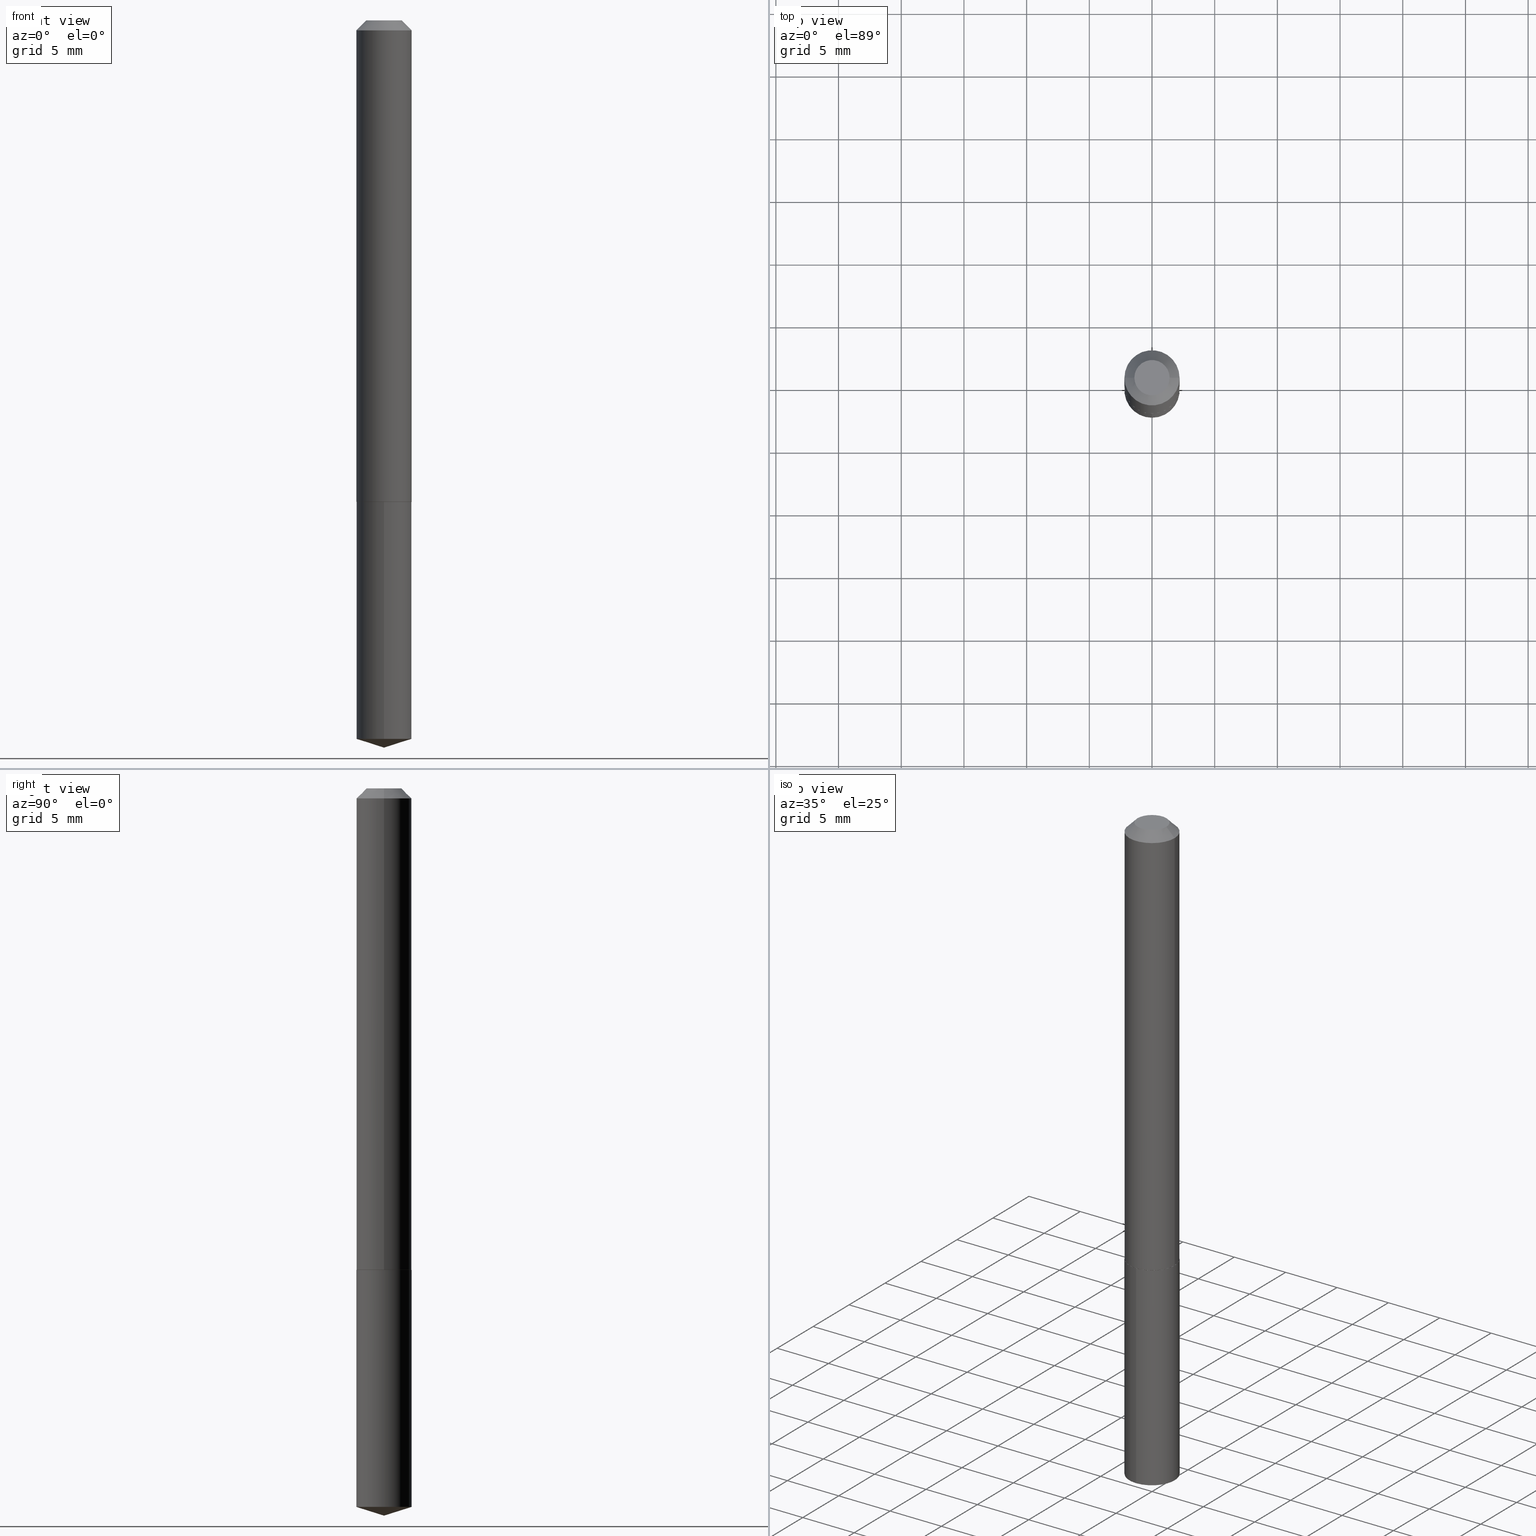
[diagram: canonical four-view strip — front | top / right | iso, engineering-drawing reading convention]
A machine part, canonical four-view strip (front | top / right | iso — engineering-drawing reading convention). The complete STEP part file that produces these views, byte-faithful:
ISO-10303-21;
HEADER;
FILE_DESCRIPTION (( 'STEP AP203' ),
    '1' );
FILE_NAME ('68692.STEP',
    '2024-04-23T13:39:04',
    ( '' ),
    ( '' ),
    'SwSTEP 2.0',
    'SolidWorks 2023',
    '' );
FILE_SCHEMA (( 'CONFIG_CONTROL_DESIGN' ));
ENDSEC;

DATA;
#1 = EDGE_CURVE ( 'NONE', #11, #234, #182, .T. ) ;
#2 = DIRECTION ( 'NONE',  ( -2.445422025612564352E-29, 3.491548331285653960E-15, 1.000000000000000000 ) ) ;
#3 = EDGE_CURVE ( 'NONE', #207, #19, #53, .T. ) ;
#4 = PLANE ( 'NONE',  #230 ) ;
#5 = CC_DESIGN_PERSON_AND_ORGANIZATION_ASSIGNMENT ( #176, #242, ( #196 ) ) ;
#6 = DIRECTION ( 'NONE',  ( -2.445468806185136597E-29, 3.491481338843145583E-15, 1.000000000000000000 ) ) ;
#7 = AXIS2_PLACEMENT_3D ( 'NONE', #246, #218, #387 ) ;
#8 = VECTOR ( 'NONE', #279, 39.37007874015748143 ) ;
#9 = ORGANIZATION ( 'UNSPECIFIED', 'UNSPECIFIED', '' ) ;
#10 = CYLINDRICAL_SURFACE ( 'NONE', #248, 0.08660000000000007969 ) ;
#11 = VERTEX_POINT ( 'NONE', #28 ) ;
#12 =( LENGTH_UNIT ( ) NAMED_UNIT ( * ) SI_UNIT ( $, .METRE. ) );
#13 = ORIENTED_EDGE ( 'NONE', *, *, #274, .F. ) ;
#14 =( NAMED_UNIT ( * ) PLANE_ANGLE_UNIT ( ) SI_UNIT ( $, .RADIAN. ) );
#15 = DIRECTION ( 'NONE',  ( -2.445422025612564352E-29, 3.491548331285653960E-15, 1.000000000000000000 ) ) ;
#16 = VERTEX_POINT ( 'NONE', #270 ) ;
#17 = EDGE_CURVE ( 'NONE', #11, #16, #103, .T. ) ;
#18 = COORDINATED_UNIVERSAL_TIME_OFFSET ( 5, 0, .BEHIND. ) ;
#19 = VERTEX_POINT ( 'NONE', #29 ) ;
#20 = DATE_AND_TIME ( #237, #202 ) ;
#21 = CIRCLE ( 'NONE', #38, 0.08660000000000017684 ) ;
#22 = LOCAL_TIME ( 9, 39, 4.000000000000000000, #170 ) ;
#23 = ORIENTED_EDGE ( 'NONE', *, *, #189, .F. ) ;
#24 = CC_DESIGN_DATE_AND_TIME_ASSIGNMENT ( #291, #51, ( #43 ) ) ;
#25 = COORDINATED_UNIVERSAL_TIME_OFFSET ( 5, 0, .BEHIND. ) ;
#26 = LINE ( 'NONE', #145, #158 ) ;
#27 = MECHANICAL_CONTEXT ( 'NONE', #154, 'mechanical' ) ;
#28 = CARTESIAN_POINT ( 'NONE',  ( 5.584121195486290452E-29, -7.972950614490791274E-15, -2.283500000000000085 ) ) ;
#29 = CARTESIAN_POINT ( 'NONE',  ( 0.08660000000000017684, -5.881400315281277448E-15, -1.511300000000000088 ) ) ;
#30 = VECTOR ( 'NONE', #268, 39.37007874015748854 ) ;
#31 = DIRECTION ( 'NONE',  ( -2.445468806185136597E-29, 3.491481338843145583E-15, 1.000000000000000000 ) ) ;
#32 = FACE_OUTER_BOUND ( 'NONE', #197, .T. ) ;
#33 = CARTESIAN_POINT ( 'NONE',  ( 7.642090019328603538E-31, -1.091087918388490390E-16, -0.03125000000000021511 ) ) ;
#34 = EDGE_CURVE ( 'NONE', #164, #341, #26, .T. ) ;
#35 = LINE ( 'NONE', #122, #356 ) ;
#36 = DIRECTION ( 'NONE',  ( -2.445468806185136597E-29, 3.491481338843145583E-15, 1.000000000000000000 ) ) ;
#37 = CARTESIAN_POINT ( 'NONE',  ( -9.069226578292615605E-28, 1.294896833924654436E-13, 37.08657874015747780 ) ) ;
#38 = AXIS2_PLACEMENT_3D ( 'NONE', #89, #36, #330 ) ;
#39 = CARTESIAN_POINT ( 'NONE',  ( -0.08660000000000017684, -4.661345738225397323E-15, -1.511300000000000088 ) ) ;
#40 = ORIENTED_EDGE ( 'NONE', *, *, #299, .T. ) ;
#41 = PLANE ( 'NONE',  #135 ) ;
#42 = ORIENTED_EDGE ( 'NONE', *, *, #114, .F. ) ;
#43 = PRODUCT_DEFINITION ( 'UNKNOWN', '', #196, #163 ) ;
#44 = AXIS2_PLACEMENT_3D ( 'NONE', #307, #31, #360 ) ;
#45 = FACE_OUTER_BOUND ( 'NONE', #66, .T. ) ;
#46 = ORIENTED_EDGE ( 'NONE', *, *, #72, .T. ) ;
#47 = PERSON_AND_ORGANIZATION_ROLE ( 'classification_officer' ) ;
#48 = DIRECTION ( 'NONE',  ( -6.982962677686265922E-15, -1.000000000000000000, 3.154558884138872662E-15 ) ) ;
#49 = PERSON_AND_ORGANIZATION ( #332, #9 ) ;
#50 = ORIENTED_EDGE ( 'NONE', *, *, #3, .F. ) ;
#51 = DATE_TIME_ROLE ( 'creation_date' ) ;
#52 = VECTOR ( 'NONE', #70, 39.37007874015748143 ) ;
#53 = LINE ( 'NONE', #300, #148 ) ;
#54 = ORIENTED_EDGE ( 'NONE', *, *, #99, .T. ) ;
#55 = ORIENTED_EDGE ( 'NONE', *, *, #302, .F. ) ;
#56 = PRODUCT_RELATED_PRODUCT_CATEGORY ( 'detail', '', ( #130 ) ) ;
#57 = DIRECTION ( 'NONE',  ( -2.445468806185136597E-29, 3.491481338843145583E-15, 1.000000000000000000 ) ) ;
#58 = CIRCLE ( 'NONE', #92, 0.08610000000000020415 ) ;
#59 = DIRECTION ( 'NONE',  ( -2.445468806185136877E-29, 3.491481338843145188E-15, 1.000000000000000000 ) ) ;
#60 = CARTESIAN_POINT ( 'NONE',  ( 7.642090019328603538E-31, -1.091087918388490390E-16, -0.03125000000000021511 ) ) ;
#61 = ADVANCED_FACE ( 'NONE', ( #80 ), #385, .T. ) ;
#62 = CARTESIAN_POINT ( 'NONE',  ( 7.642090019328603538E-31, -1.091087918388490390E-16, -0.03125000000000021511 ) ) ;
#63 = CARTESIAN_POINT ( 'NONE',  ( 3.697059741190689517E-29, -5.278421488063067239E-15, -1.511800000000000033 ) ) ;
#64 = LINE ( 'NONE', #193, #52 ) ;
#65 = CC_DESIGN_PERSON_AND_ORGANIZATION_ASSIGNMENT ( #269, #208, ( #196 ) ) ;
#66 = EDGE_LOOP ( 'NONE', ( #79, #102, #107, #349 ) ) ;
#67 = AXIS2_PLACEMENT_3D ( 'NONE', #37, #15, #256 ) ;
#68 = CC_DESIGN_APPROVAL ( #286, ( #43 ) ) ;
#69 = LENGTH_MEASURE_WITH_UNIT ( LENGTH_MEASURE( 0.02539999999999999897 ), #12 );
#70 = DIRECTION ( 'NONE',  ( -0.7071067811867889352, 7.493145998871226640E-15, 0.7071067811863060992 ) ) ;
#71 = ORIENTED_EDGE ( 'NONE', *, *, #17, .F. ) ;
#72 = EDGE_CURVE ( 'NONE', #161, #296, #183, .T. ) ;
#73 = EDGE_CURVE ( 'NONE', #16, #234, #201, .T. ) ;
#74 = AXIS2_PLACEMENT_3D ( 'NONE', #60, #213, #116 ) ;
#75 = DIRECTION ( 'NONE',  ( 0.000000000000000000, 0.000000000000000000, 1.000000000000000000 ) ) ;
#76 = DIRECTION ( 'NONE',  ( -6.659769872151632089E-15, -0.9537169507482267106, 0.3007057995042736187 ) ) ;
#77 = APPROVAL_DATE_TIME ( #263, #121 ) ;
#78 = EDGE_LOOP ( 'NONE', ( #13, #359, #322, #345 ) ) ;
#79 = ORIENTED_EDGE ( 'NONE', *, *, #235, .F. ) ;
#80 = FACE_OUTER_BOUND ( 'NONE', #78, .T. ) ;
#81 = SHAPE_DEFINITION_REPRESENTATION ( #93, #140 ) ;
#82 = ORIENTED_EDGE ( 'NONE', *, *, #225, .F. ) ;
#83 = ADVANCED_FACE ( 'NONE', ( #380 ), #386, .T. ) ;
#84 = CARTESIAN_POINT ( 'NONE',  ( 3.695837006787596715E-29, -5.276675747393645735E-15, -1.511300000000000088 ) ) ;
#85 = CARTESIAN_POINT ( 'NONE',  ( 3.697059741190689517E-29, -5.278421488063067239E-15, -1.511800000000000033 ) ) ;
#86 = AXIS2_PLACEMENT_3D ( 'NONE', #363, #276, #277 ) ;
#87 = DIRECTION ( 'NONE',  ( 1.000000000000000000, -6.982962677686265133E-15, 0.000000000000000000 ) ) ;
#88 = ADVANCED_FACE ( 'NONE', ( #309 ), #280, .T. ) ;
#89 = CARTESIAN_POINT ( 'NONE',  ( 3.695837006787596715E-29, -5.276675747393645735E-15, -1.511300000000000088 ) ) ;
#90 = CARTESIAN_POINT ( 'NONE',  ( 0.08610000000000020415, -5.879654574611855156E-15, -1.511799999999999811 ) ) ;
#91 = CLOSED_SHELL ( 'NONE', ( #252, #335, #245, #61, #125 ) ) ;
#92 = AXIS2_PLACEMENT_3D ( 'NONE', #283, #6, #166 ) ;
#93 = PRODUCT_DEFINITION_SHAPE ( 'NONE', 'NONE',  #43 ) ;
#94 = CARTESIAN_POINT ( 'NONE',  ( 7.046617267759642460E-29, -4.816644650414364040E-16, -1.511800000000000033 ) ) ;
#95 = DIRECTION ( 'NONE',  ( -1.000000000000000000, 6.982962677686265922E-15, -4.876176775795935793E-29 ) ) ;
#96 = CIRCLE ( 'NONE', #74, 0.08659999999999998255 ) ;
#97 = APPROVAL_PERSON_ORGANIZATION ( #180, #286, #293 ) ;
#98 = CARTESIAN_POINT ( 'NONE',  ( -2.919964657261559142E-48, 4.168935659749500181E-34, 1.194030629168655274E-19 ) ) ;
#99 = EDGE_CURVE ( 'NONE', #341, #211, #96, .T. ) ;
#100 = ORIENTED_EDGE ( 'NONE', *, *, #235, .T. ) ;
#101 = DIRECTION ( 'NONE',  ( -2.445468806185136597E-29, 3.491481338843145583E-15, 1.000000000000000000 ) ) ;
#102 = ORIENTED_EDGE ( 'NONE', *, *, #142, .T. ) ;
#103 = LINE ( 'NONE', #298, #30 ) ;
#104 = CONICAL_SURFACE ( 'NONE', #175, 0.08659999999999998255, 0.7853981633974449483 ) ;
#105 = DATE_AND_TIME ( #138, #379 ) ;
#106 = ORIENTED_EDGE ( 'NONE', *, *, #172, .F. ) ;
#107 = ORIENTED_EDGE ( 'NONE', *, *, #287, .T. ) ;
#108 = APPROVAL_STATUS ( 'not_yet_approved' ) ;
#109 = CARTESIAN_POINT ( 'NONE',  ( 3.697059741190689517E-29, -5.278421488063067239E-15, -1.511800000000000033 ) ) ;
#110 = PERSON_AND_ORGANIZATION ( #332, #9 ) ;
#111 = AXIS2_PLACEMENT_3D ( 'NONE', #390, #57, #278 ) ;
#112 = APPROVAL ( #265, 'UNSPECIFIED' ) ;
#113 = CARTESIAN_POINT ( 'NONE',  ( 3.697059741190689517E-29, -5.278421488063067239E-15, -1.511800000000000033 ) ) ;
#114 = EDGE_CURVE ( 'NONE', #234, #16, #144, .T. ) ;
#115 = DIRECTION ( 'NONE',  ( 6.982962677686265922E-15, 1.000000000000000000, -3.491548331285654355E-15 ) ) ;
#116 = DIRECTION ( 'NONE',  ( 1.000000000000000000, -6.982962677686267499E-15, 0.000000000000000000 ) ) ;
#117 = DIRECTION ( 'NONE',  ( -1.000000000000000000, 6.982962677686267499E-15, 0.000000000000000000 ) ) ;
#118 = LINE ( 'NONE', #388, #336 ) ;
#119 = CARTESIAN_POINT ( 'NONE',  ( 0.05534999999999998949, -5.414782413112588911E-16, 2.388061258369751875E-19 ) ) ;
#120 = FACE_OUTER_BOUND ( 'NONE', #266, .T. ) ;
#121 = APPROVAL ( #108, 'UNSPECIFIED' ) ;
#122 = CARTESIAN_POINT ( 'NONE',  ( 6.153300091682836148E-16, 0.08659999999999470899, -1.511800000000000255 ) ) ;
#123 = FACE_OUTER_BOUND ( 'NONE', #181, .T. ) ;
#124 = EDGE_LOOP ( 'NONE', ( #282, #324 ) ) ;
#125 = ADVANCED_FACE ( 'NONE', ( #361 ), #4, .F. ) ;
#126 = DIRECTION ( 'NONE',  ( 2.438088387897960049E-29, -3.491481338843145188E-15, -1.000000000000000000 ) ) ;
#127 =( GEOMETRIC_REPRESENTATION_CONTEXT ( 3 ) GLOBAL_UNCERTAINTY_ASSIGNED_CONTEXT ( ( #272 ) ) GLOBAL_UNIT_ASSIGNED_CONTEXT ( ( #199, #14, #259 ) ) REPRESENTATION_CONTEXT ( 'NONE', 'WORKASPACE' ) );
#128 = SECURITY_CLASSIFICATION ( '', '', #321 ) ;
#129 = DIRECTION ( 'NONE',  ( -2.445468806185136597E-29, 3.491481338843145583E-15, 1.000000000000000000 ) ) ;
#130 = PRODUCT ( '68692', '68692', '', ( #27 ) ) ;
#131 = APPROVAL_ROLE ( '' ) ;
#132 = APPROVAL_DATE_TIME ( #105, #112 ) ;
#133 = VERTEX_POINT ( 'NONE', #119 ) ;
#134 = EDGE_CURVE ( 'NONE', #159, #207, #378, .T. ) ;
#135 = AXIS2_PLACEMENT_3D ( 'NONE', #94, #376, #221 ) ;
#136 = PERSON_AND_ORGANIZATION ( #332, #9 ) ;
#137 = ORIENTED_EDGE ( 'NONE', *, *, #73, .F. ) ;
#138 = CALENDAR_DATE ( 2024, 23, 4 ) ;
#139 = ORIENTED_EDGE ( 'NONE', *, *, #189, .T. ) ;
#140 = ADVANCED_BREP_SHAPE_REPRESENTATION ( '68692', ( #233, #239, #249 ), #127 ) ;
#141 = APPROVAL_STATUS ( 'not_yet_approved' ) ;
#142 = EDGE_CURVE ( 'NONE', #373, #19, #255, .T. ) ;
#143 = ORIENTED_EDGE ( 'NONE', *, *, #367, .T. ) ;
#144 = CIRCLE ( 'NONE', #7, 0.08659999999999998255 ) ;
#145 = CARTESIAN_POINT ( 'NONE',  ( -0.08659999999999998255, 4.956157760487816265E-16, -0.03125000000000021511 ) ) ;
#146 = CARTESIAN_POINT ( 'NONE',  ( 6.153300091683017586E-16, 0.08659999999999469511, -1.511800000000000255 ) ) ;
#147 = CYLINDRICAL_SURFACE ( 'NONE', #231, 0.08659999999999998255 ) ;
#148 = VECTOR ( 'NONE', #177, 39.37007874015748143 ) ;
#149 = DIRECTION ( 'NONE',  ( -1.000000000000000000, 6.982962677686267499E-15, 0.000000000000000000 ) ) ;
#150 = CIRCLE ( 'NONE', #223, 0.05534999999999998949 ) ;
#151 = APPROVAL_PERSON_ORGANIZATION ( #136, #112, #381 ) ;
#152 = EDGE_CURVE ( 'NONE', #19, #373, #21, .T. ) ;
#153 = DIRECTION ( 'NONE',  ( 2.445468806185136597E-29, -3.491481338843145583E-15, -1.000000000000000000 ) ) ;
#154 = APPLICATION_CONTEXT ( 'configuration controlled 3d designs of mechanical parts and assemblies' ) ;
#155 = FACE_OUTER_BOUND ( 'NONE', #174, .T. ) ;
#156 = CC_DESIGN_PERSON_AND_ORGANIZATION_ASSIGNMENT ( #49, #47, ( #128 ) ) ;
#157 = DIRECTION ( 'NONE',  ( 0.7071067811865451302, -7.319954787623248157E-15, -0.7071067811865499042 ) ) ;
#158 = VECTOR ( 'NONE', #273, 39.37007874015748143 ) ;
#159 = VERTEX_POINT ( 'NONE', #305 ) ;
#160 = DIRECTION ( 'NONE',  ( 1.000000000000000000, -6.982962677686267499E-15, 4.876176775795935793E-29 ) ) ;
#161 = VERTEX_POINT ( 'NONE', #146 ) ;
#162 = CYLINDRICAL_SURFACE ( 'NONE', #318, 0.08660000000000007969 ) ;
#163 = DESIGN_CONTEXT ( 'detailed design', #165, 'design' ) ;
#164 = VERTEX_POINT ( 'NONE', #365 ) ;
#165 = APPLICATION_CONTEXT ( 'configuration controlled 3d designs of mechanical parts and assemblies' ) ;
#166 = DIRECTION ( 'NONE',  ( 1.000000000000000000, -6.982962677686268288E-15, 0.000000000000000000 ) ) ;
#167 = VECTOR ( 'NONE', #198, 39.37007874015748143 ) ;
#168 = CALENDAR_DATE ( 2024, 23, 4 ) ;
#169 = ORIENTED_EDGE ( 'NONE', *, *, #34, .T. ) ;
#170 = COORDINATED_UNIVERSAL_TIME_OFFSET ( 5, 0, .BEHIND. ) ;
#171 = CARTESIAN_POINT ( 'NONE',  ( 5.517419975338388882E-29, -7.877513044165762958E-15, -2.256195124883080272 ) ) ;
#172 = EDGE_CURVE ( 'NONE', #211, #341, #369, .T. ) ;
#173 = PERSON_AND_ORGANIZATION_ROLE ( 'design_owner' ) ;
#174 = EDGE_LOOP ( 'NONE', ( #238, #23, #169, #54 ) ) ;
#175 = AXIS2_PLACEMENT_3D ( 'NONE', #33, #153, #149 ) ;
#176 = PERSON_AND_ORGANIZATION ( #332, #9 ) ;
#177 = DIRECTION ( 'NONE',  ( 0.7071067811867889352, -2.468850131084785360E-15, 0.7071067811863060992 ) ) ;
#178 = ADVANCED_FACE ( 'NONE', ( #155 ), #362, .T. ) ;
#179 = CC_DESIGN_PERSON_AND_ORGANIZATION_ASSIGNMENT ( #110, #173, ( #130 ) ) ;
#180 = PERSON_AND_ORGANIZATION ( #332, #9 ) ;
#181 = EDGE_LOOP ( 'NONE', ( #314, #227, #42 ) ) ;
#182 = LINE ( 'NONE', #236, #346 ) ;
#183 = CIRCLE ( 'NONE', #368, 0.08659999999999998255 ) ;
#184 = DIRECTION ( 'NONE',  ( -6.982962677686265922E-15, -1.000000000000000000, 3.154558884138872662E-15 ) ) ;
#185 = FACE_OUTER_BOUND ( 'NONE', #209, .T. ) ;
#186 = DIRECTION ( 'NONE',  ( -2.445468806185136597E-29, 3.491481338843145583E-15, 1.000000000000000000 ) ) ;
#187 = DIRECTION ( 'NONE',  ( -6.982962677686267499E-15, -1.000000000000000000, 3.500519750498701671E-15 ) ) ;
#188 = LOCAL_TIME ( 9, 39, 4.000000000000000000, #384 ) ;
#189 = EDGE_CURVE ( 'NONE', #164, #133, #210, .T. ) ;
#190 = FACE_OUTER_BOUND ( 'NONE', #320, .T. ) ;
#191 = CARTESIAN_POINT ( 'NONE',  ( 0.08659999999999998255, -7.032279184458636221E-16, -0.03125000000000021511 ) ) ;
#192 = ORIENTED_EDGE ( 'NONE', *, *, #274, .T. ) ;
#193 = CARTESIAN_POINT ( 'NONE',  ( -0.08660000000000017684, -4.661345738225397323E-15, -1.511300000000000088 ) ) ;
#194 = AXIS2_PLACEMENT_3D ( 'NONE', #62, #216, #117 ) ;
#195 = ORIENTED_EDGE ( 'NONE', *, *, #225, .T. ) ;
#196 = PRODUCT_DEFINITION_FORMATION_WITH_SPECIFIED_SOURCE ( 'ANY', '', #130, .NOT_KNOWN. ) ;
#197 = EDGE_LOOP ( 'NONE', ( #222, #192, #82, #55 ) ) ;
#198 = DIRECTION ( 'NONE',  ( -2.445468806185136877E-29, 3.491481338843145188E-15, 1.000000000000000000 ) ) ;
#199 =( CONVERSION_BASED_UNIT ( 'INCH', #69 ) LENGTH_UNIT ( ) NAMED_UNIT ( #215 ) );
#200 = ORIENTED_EDGE ( 'NONE', *, *, #287, .F. ) ;
#201 = CIRCLE ( 'NONE', #342, 0.08659999999999998255 ) ;
#202 = LOCAL_TIME ( 9, 39, 4.000000000000000000, #358 ) ;
#203 = ADVANCED_FACE ( 'NONE', ( #190 ), #104, .T. ) ;
#204 = PERSON_AND_ORGANIZATION ( #332, #9 ) ;
#205 = DIRECTION ( 'NONE',  ( -2.445422025612564352E-29, 3.491548331285653960E-15, 1.000000000000000000 ) ) ;
#206 = PERSON_AND_ORGANIZATION ( #332, #9 ) ;
#207 = VERTEX_POINT ( 'NONE', #90 ) ;
#208 = PERSON_AND_ORGANIZATION_ROLE ( 'design_supplier' ) ;
#209 = EDGE_LOOP ( 'NONE', ( #71, #303, #137 ) ) ;
#210 = CIRCLE ( 'NONE', #311, 0.05534999999999998949 ) ;
#211 = VERTEX_POINT ( 'NONE', #333 ) ;
#212 = ORIENTED_EDGE ( 'NONE', *, *, #152, .T. ) ;
#213 = DIRECTION ( 'NONE',  ( -2.445468806185136597E-29, 3.491481338843145583E-15, 1.000000000000000000 ) ) ;
#214 = DIRECTION ( 'NONE',  ( -2.445468806185136597E-29, 3.491481338843145583E-15, 1.000000000000000000 ) ) ;
#215 = DIMENSIONAL_EXPONENTS ( 1.000000000000000000, 0.000000000000000000, 0.000000000000000000, 0.000000000000000000, 0.000000000000000000, 0.000000000000000000, 0.000000000000000000 ) ;
#216 = DIRECTION ( 'NONE',  ( 2.445468806185136597E-29, -3.491481338843145583E-15, -1.000000000000000000 ) ) ;
#217 = DIRECTION ( 'NONE',  ( 1.000000000000000000, -6.982962677686266711E-15, 4.876151470398592516E-29 ) ) ;
#218 = DIRECTION ( 'NONE',  ( -2.445422025612564352E-29, 3.491548331285653960E-15, 1.000000000000000000 ) ) ;
#219 = AXIS2_PLACEMENT_3D ( 'NONE', #84, #214, #87 ) ;
#220 = LINE ( 'NONE', #310, #8 ) ;
#221 = DIRECTION ( 'NONE',  ( 1.000000000000000000, -6.982962677686265922E-15, 4.876176775795935793E-29 ) ) ;
#222 = ORIENTED_EDGE ( 'NONE', *, *, #114, .T. ) ;
#223 = AXIS2_PLACEMENT_3D ( 'NONE', #254, #101, #226 ) ;
#224 = ORIENTED_EDGE ( 'NONE', *, *, #172, .T. ) ;
#225 = EDGE_CURVE ( 'NONE', #296, #161, #271, .T. ) ;
#226 = DIRECTION ( 'NONE',  ( 1.000000000000000000, -6.982962677686266711E-15, 4.876151470398592516E-29 ) ) ;
#227 = ORIENTED_EDGE ( 'NONE', *, *, #17, .T. ) ;
#228 = APPLICATION_PROTOCOL_DEFINITION ( 'international standard', 'config_control_design', 1994, #154 ) ;
#229 = DIRECTION ( 'NONE',  ( -2.445422025612564352E-29, 3.491548331285653960E-15, 1.000000000000000000 ) ) ;
#230 = AXIS2_PLACEMENT_3D ( 'NONE', #85, #337, #115 ) ;
#231 = AXIS2_PLACEMENT_3D ( 'NONE', #250, #334, #308 ) ;
#232 = CC_DESIGN_SECURITY_CLASSIFICATION ( #128, ( #196 ) ) ;
#233 = MANIFOLD_SOLID_BREP ( 'Body-Move/Copy2[1]', #91 ) ;
#234 = VERTEX_POINT ( 'NONE', #275 ) ;
#235 = EDGE_CURVE ( 'NONE', #373, #341, #118, .T. ) ;
#236 = CARTESIAN_POINT ( 'NONE',  ( 5.584121195486290452E-29, -7.972950614490792852E-15, -2.283500000000000085 ) ) ;
#237 = CALENDAR_DATE ( 2024, 23, 4 ) ;
#238 = ORIENTED_EDGE ( 'NONE', *, *, #299, .F. ) ;
#239 = MANIFOLD_SOLID_BREP ( 'Body-Move/Copy2[2]', #317 ) ;
#240 = CONICAL_SURFACE ( 'NONE', #67, 124.8659371009151613, 1.265363707695891904 ) ;
#241 = CC_DESIGN_APPROVAL ( #112, ( #128 ) ) ;
#242 = PERSON_AND_ORGANIZATION_ROLE ( 'creator' ) ;
#243 = ORIENTED_EDGE ( 'NONE', *, *, #34, .F. ) ;
#244 = CARTESIAN_POINT ( 'NONE',  ( 3.697059741190688956E-29, -5.278421488063066450E-15, -1.511799999999999811 ) ) ;
#245 = ADVANCED_FACE ( 'NONE', ( #185 ), #348, .T. ) ;
#246 = CARTESIAN_POINT ( 'NONE',  ( 5.517419975338388882E-29, -7.877513044165762958E-15, -2.256195124883080272 ) ) ;
#247 = AXIS2_PLACEMENT_3D ( 'NONE', #113, #229, #383 ) ;
#248 = AXIS2_PLACEMENT_3D ( 'NONE', #344, #372, #160 ) ;
#249 = AXIS2_PLACEMENT_3D ( 'NONE', #297, #75, #295 ) ;
#250 = CARTESIAN_POINT ( 'NONE',  ( 3.697059741190689517E-29, -5.278421488063067239E-15, -1.511800000000000033 ) ) ;
#251 = CARTESIAN_POINT ( 'NONE',  ( -9.069226578292615605E-28, 1.294896833924654436E-13, 37.08657874015747780 ) ) ;
#252 = ADVANCED_FACE ( 'NONE', ( #32 ), #147, .T. ) ;
#253 = DIRECTION ( 'NONE',  ( 1.000000000000000000, -6.982962677686268288E-15, 0.000000000000000000 ) ) ;
#254 = CARTESIAN_POINT ( 'NONE',  ( -5.839929314523118284E-48, 8.337871319499000362E-34, 2.388061258337310548E-19 ) ) ;
#255 = CIRCLE ( 'NONE', #44, 0.08660000000000017684 ) ;
#256 = DIRECTION ( 'NONE',  ( -6.982962677686267499E-15, -1.000000000000000000, 3.500519750498701671E-15 ) ) ;
#257 = CARTESIAN_POINT ( 'NONE',  ( -6.047245678875935520E-16, -0.08660000000000526998, -1.511799999999999811 ) ) ;
#258 = EDGE_LOOP ( 'NONE', ( #292, #351, #371, #382 ) ) ;
#259 =( NAMED_UNIT ( * ) SI_UNIT ( $, .STERADIAN. ) SOLID_ANGLE_UNIT ( ) );
#260 = AXIS2_PLACEMENT_3D ( 'NONE', #251, #306, #187 ) ;
#261 = APPROVAL_PERSON_ORGANIZATION ( #206, #121, #131 ) ;
#262 = CARTESIAN_POINT ( 'NONE',  ( 0.08660000000000007969, -6.047245678876313188E-16, 4.222769087839284057E-30 ) ) ;
#263 = DATE_AND_TIME ( #377, #22 ) ;
#264 = DIRECTION ( 'NONE',  ( -6.982962677686265922E-15, -1.000000000000000000, 3.154558884138872662E-15 ) ) ;
#265 = APPROVAL_STATUS ( 'not_yet_approved' ) ;
#266 = EDGE_LOOP ( 'NONE', ( #212, #100, #106, #200 ) ) ;
#267 = DATE_AND_TIME ( #168, #188 ) ;
#268 = DIRECTION ( 'NONE',  ( 6.776566513254257349E-15, 0.9537169507482289310, 0.3007057995042669574 ) ) ;
#269 = PERSON_AND_ORGANIZATION ( #332, #9 ) ;
#270 = CARTESIAN_POINT ( 'NONE',  ( 6.153300091683018572E-16, 0.08659999999999209996, -2.256195124883080716 ) ) ;
#271 = CIRCLE ( 'NONE', #304, 0.08659999999999998255 ) ;
#272 = UNCERTAINTY_MEASURE_WITH_UNIT (LENGTH_MEASURE( 1.000000000000000082E-05 ), #199, 'distance_accuracy_value', 'NONE');
#273 = DIRECTION ( 'NONE',  ( -0.7071067811865451302, 2.468850131082231817E-15, -0.7071067811865499042 ) ) ;
#274 = EDGE_CURVE ( 'NONE', #16, #161, #35, .T. ) ;
#275 = CARTESIAN_POINT ( 'NONE',  ( -6.047245678875755068E-16, -0.08660000000000787901, -2.256195124883080272 ) ) ;
#276 = DIRECTION ( 'NONE',  ( -2.445468806185136597E-29, 3.491481338843145583E-15, 1.000000000000000000 ) ) ;
#277 = DIRECTION ( 'NONE',  ( 1.000000000000000000, -6.982962677686265133E-15, 0.000000000000000000 ) ) ;
#278 = DIRECTION ( 'NONE',  ( 1.000000000000000000, -6.982962677686267499E-15, 0.000000000000000000 ) ) ;
#279 = DIRECTION ( 'NONE',  ( -2.445422025612564632E-29, 3.491548331285654355E-15, 1.000000000000000000 ) ) ;
#280 = CONICAL_SURFACE ( 'NONE', #219, 0.08660000000000017684, 0.7853981633977896726 ) ;
#281 = FACE_OUTER_BOUND ( 'NONE', #124, .T. ) ;
#282 = ORIENTED_EDGE ( 'NONE', *, *, #326, .F. ) ;
#283 = CARTESIAN_POINT ( 'NONE',  ( 3.697059741190688956E-29, -5.278421488063066450E-15, -1.511799999999999811 ) ) ;
#284 = FACE_OUTER_BOUND ( 'NONE', #316, .T. ) ;
#285 = ORIENTED_EDGE ( 'NONE', *, *, #354, .T. ) ;
#286 = APPROVAL ( #141, 'UNSPECIFIED' ) ;
#287 = EDGE_CURVE ( 'NONE', #19, #211, #288, .T. ) ;
#288 = LINE ( 'NONE', #262, #167 ) ;
#289 = AXIS2_PLACEMENT_3D ( 'NONE', #244, #186, #253 ) ;
#290 = ORIENTED_EDGE ( 'NONE', *, *, #354, .F. ) ;
#291 = DATE_AND_TIME ( #350, #313 ) ;
#292 = ORIENTED_EDGE ( 'NONE', *, *, #367, .F. ) ;
#293 = APPROVAL_ROLE ( '' ) ;
#294 = DIRECTION ( 'NONE',  ( -2.445422025612564352E-29, 3.491548331285653960E-15, 1.000000000000000000 ) ) ;
#295 = DIRECTION ( 'NONE',  ( 1.000000000000000000, 0.000000000000000000, 0.000000000000000000 ) ) ;
#296 = VERTEX_POINT ( 'NONE', #257 ) ;
#297 = CARTESIAN_POINT ( 'NONE',  ( 0.000000000000000000, 0.000000000000000000, 0.000000000000000000 ) ) ;
#298 = CARTESIAN_POINT ( 'NONE',  ( 5.584263881537691311E-29, -7.972748056141623317E-15, -2.283500000000000085 ) ) ;
#299 = EDGE_CURVE ( 'NONE', #133, #211, #312, .T. ) ;
#300 = CARTESIAN_POINT ( 'NONE',  ( 0.08660000000000017684, -5.881400315281277448E-15, -1.511300000000000088 ) ) ;
#301 = CC_DESIGN_PERSON_AND_ORGANIZATION_ASSIGNMENT ( #204, #319, ( #43 ) ) ;
#302 = EDGE_CURVE ( 'NONE', #234, #296, #220, .T. ) ;
#303 = ORIENTED_EDGE ( 'NONE', *, *, #1, .T. ) ;
#304 = AXIS2_PLACEMENT_3D ( 'NONE', #63, #2, #184 ) ;
#305 = CARTESIAN_POINT ( 'NONE',  ( -0.08610000000000020415, -4.663994965399507735E-15, -1.511799999999999811 ) ) ;
#306 = DIRECTION ( 'NONE',  ( -2.445422025612564352E-29, 3.491548331285653960E-15, 1.000000000000000000 ) ) ;
#307 = CARTESIAN_POINT ( 'NONE',  ( 3.695837006787596715E-29, -5.276675747393645735E-15, -1.511300000000000088 ) ) ;
#308 = DIRECTION ( 'NONE',  ( -6.982962677686265922E-15, -1.000000000000000000, 3.154558884138872662E-15 ) ) ;
#309 = FACE_OUTER_BOUND ( 'NONE', #327, .T. ) ;
#310 = CARTESIAN_POINT ( 'NONE',  ( -6.047245678875935520E-16, -0.08660000000000526998, -1.511799999999999811 ) ) ;
#311 = AXIS2_PLACEMENT_3D ( 'NONE', #364, #331, #217 ) ;
#312 = LINE ( 'NONE', #191, #325 ) ;
#313 = LOCAL_TIME ( 9, 39, 4.000000000000000000, #25 ) ;
#314 = ORIENTED_EDGE ( 'NONE', *, *, #1, .F. ) ;
#315 = CARTESIAN_POINT ( 'NONE',  ( -0.08659999999999998255, -2.077562260447999006E-15, -0.03125000000000021511 ) ) ;
#316 = EDGE_LOOP ( 'NONE', ( #139, #285 ) ) ;
#317 = CLOSED_SHELL ( 'NONE', ( #203, #338, #88, #343, #83, #328, #178, #366 ) ) ;
#318 = AXIS2_PLACEMENT_3D ( 'NONE', #339, #129, #370 ) ;
#319 = PERSON_AND_ORGANIZATION_ROLE ( 'creator' ) ;
#320 = EDGE_LOOP ( 'NONE', ( #290, #40, #224, #243 ) ) ;
#321 = SECURITY_CLASSIFICATION_LEVEL ( 'unclassified' ) ;
#322 = ORIENTED_EDGE ( 'NONE', *, *, #302, .T. ) ;
#323 = APPLICATION_PROTOCOL_DEFINITION ( 'international standard', 'config_control_design', 1994, #165 ) ;
#324 = ORIENTED_EDGE ( 'NONE', *, *, #134, .F. ) ;
#325 = VECTOR ( 'NONE', #157, 39.37007874015748143 ) ;
#326 = EDGE_CURVE ( 'NONE', #207, #159, #58, .T. ) ;
#327 = EDGE_LOOP ( 'NONE', ( #355, #143, #329, #50 ) ) ;
#328 = ADVANCED_FACE ( 'NONE', ( #45 ), #10, .T. ) ;
#329 = ORIENTED_EDGE ( 'NONE', *, *, #152, .F. ) ;
#330 = DIRECTION ( 'NONE',  ( 1.000000000000000000, -6.982962677686265133E-15, 0.000000000000000000 ) ) ;
#331 = DIRECTION ( 'NONE',  ( -2.445468806185136597E-29, 3.491481338843145583E-15, 1.000000000000000000 ) ) ;
#332 = PERSON ( 'UNSPECIFIED', 'UNSPECIFIED', 'UNSPECIFIED', ('UNSPECIFIED'), ('UNSPECIFIED'), ('UNSPECIFIED') ) ;
#333 = CARTESIAN_POINT ( 'NONE',  ( 0.08659999999999998255, -7.138333597264797291E-16, -0.03125000000000021511 ) ) ;
#334 = DIRECTION ( 'NONE',  ( -2.445422025612564352E-29, 3.491548331285653960E-15, 1.000000000000000000 ) ) ;
#335 = ADVANCED_FACE ( 'NONE', ( #123 ), #240, .T. ) ;
#336 = VECTOR ( 'NONE', #59, 39.37007874015748143 ) ;
#337 = DIRECTION ( 'NONE',  ( 2.445422025612563792E-29, -3.491548331285654355E-15, -1.000000000000000000 ) ) ;
#338 = ADVANCED_FACE ( 'NONE', ( #120 ), #162, .T. ) ;
#339 = CARTESIAN_POINT ( 'NONE',  ( 0.000000000000000000, 0.000000000000000000, 0.000000000000000000 ) ) ;
#340 = DIRECTION ( 'NONE',  ( -2.445422025612564632E-29, 3.491548331285654355E-15, 1.000000000000000000 ) ) ;
#341 = VERTEX_POINT ( 'NONE', #315 ) ;
#342 = AXIS2_PLACEMENT_3D ( 'NONE', #171, #294, #264 ) ;
#343 = ADVANCED_FACE ( 'NONE', ( #281 ), #41, .F. ) ;
#344 = CARTESIAN_POINT ( 'NONE',  ( 0.000000000000000000, 0.000000000000000000, 0.000000000000000000 ) ) ;
#345 = ORIENTED_EDGE ( 'NONE', *, *, #72, .F. ) ;
#346 = VECTOR ( 'NONE', #76, 39.37007874015748143 ) ;
#347 = APPROVAL_DATE_TIME ( #267, #286 ) ;
#348 = CONICAL_SURFACE ( 'NONE', #260, 124.8659371009151613, 1.265363707695891904 ) ;
#349 = ORIENTED_EDGE ( 'NONE', *, *, #99, .F. ) ;
#350 = CALENDAR_DATE ( 2024, 23, 4 ) ;
#351 = ORIENTED_EDGE ( 'NONE', *, *, #134, .T. ) ;
#352 = EDGE_LOOP ( 'NONE', ( #195, #46 ) ) ;
#353 = DATE_TIME_ROLE ( 'classification_date' ) ;
#354 = EDGE_CURVE ( 'NONE', #133, #164, #150, .T. ) ;
#355 = ORIENTED_EDGE ( 'NONE', *, *, #326, .T. ) ;
#356 = VECTOR ( 'NONE', #340, 39.37007874015748143 ) ;
#357 = CC_DESIGN_APPROVAL ( #121, ( #196 ) ) ;
#358 = COORDINATED_UNIVERSAL_TIME_OFFSET ( 5, 0, .BEHIND. ) ;
#359 = ORIENTED_EDGE ( 'NONE', *, *, #73, .T. ) ;
#360 = DIRECTION ( 'NONE',  ( 1.000000000000000000, -6.982962677686265133E-15, 0.000000000000000000 ) ) ;
#361 = FACE_OUTER_BOUND ( 'NONE', #352, .T. ) ;
#362 = CONICAL_SURFACE ( 'NONE', #194, 0.08659999999999998255, 0.7853981633974449483 ) ;
#363 = CARTESIAN_POINT ( 'NONE',  ( 3.695837006787596715E-29, -5.276675747393645735E-15, -1.511300000000000088 ) ) ;
#364 = CARTESIAN_POINT ( 'NONE',  ( -5.839929314523118284E-48, 8.337871319499000362E-34, 2.388061258337310548E-19 ) ) ;
#365 = CARTESIAN_POINT ( 'NONE',  ( -0.05534999999999998949, 4.410613801293581608E-16, 2.388061258308374895E-19 ) ) ;
#366 = ADVANCED_FACE ( 'NONE', ( #284 ), #375, .F. ) ;
#367 = EDGE_CURVE ( 'NONE', #159, #373, #64, .T. ) ;
#368 = AXIS2_PLACEMENT_3D ( 'NONE', #109, #205, #48 ) ;
#369 = CIRCLE ( 'NONE', #111, 0.08659999999999998255 ) ;
#370 = DIRECTION ( 'NONE',  ( 1.000000000000000000, -6.982962677686267499E-15, 4.876176775795935793E-29 ) ) ;
#371 = ORIENTED_EDGE ( 'NONE', *, *, #3, .T. ) ;
#372 = DIRECTION ( 'NONE',  ( -2.445468806185136597E-29, 3.491481338843145583E-15, 1.000000000000000000 ) ) ;
#373 = VERTEX_POINT ( 'NONE', #39 ) ;
#374 = AXIS2_PLACEMENT_3D ( 'NONE', #98, #126, #95 ) ;
#375 = PLANE ( 'NONE',  #374 ) ;
#376 = DIRECTION ( 'NONE',  ( -2.438088387897960049E-29, 3.491481338843145188E-15, 1.000000000000000000 ) ) ;
#377 = CALENDAR_DATE ( 2024, 23, 4 ) ;
#378 = CIRCLE ( 'NONE', #289, 0.08610000000000020415 ) ;
#379 = LOCAL_TIME ( 9, 39, 4.000000000000000000, #18 ) ;
#380 = FACE_OUTER_BOUND ( 'NONE', #258, .T. ) ;
#381 = APPROVAL_ROLE ( '' ) ;
#382 = ORIENTED_EDGE ( 'NONE', *, *, #142, .F. ) ;
#383 = DIRECTION ( 'NONE',  ( -6.982962677686265922E-15, -1.000000000000000000, 3.154558884138872662E-15 ) ) ;
#384 = COORDINATED_UNIVERSAL_TIME_OFFSET ( 5, 0, .BEHIND. ) ;
#385 = CYLINDRICAL_SURFACE ( 'NONE', #247, 0.08659999999999998255 ) ;
#386 = CONICAL_SURFACE ( 'NONE', #86, 0.08660000000000017684, 0.7853981633977896726 ) ;
#387 = DIRECTION ( 'NONE',  ( -6.982962677686265922E-15, -1.000000000000000000, 3.154558884138872662E-15 ) ) ;
#388 = CARTESIAN_POINT ( 'NONE',  ( -0.08660000000000007969, 6.153300091682473272E-16, -4.259797788160751610E-30 ) ) ;
#389 = CC_DESIGN_DATE_AND_TIME_ASSIGNMENT ( #20, #353, ( #128 ) ) ;
#390 = CARTESIAN_POINT ( 'NONE',  ( 7.642090019328603538E-31, -1.091087918388490390E-16, -0.03125000000000021511 ) ) ;
ENDSEC;
END-ISO-10303-21;
